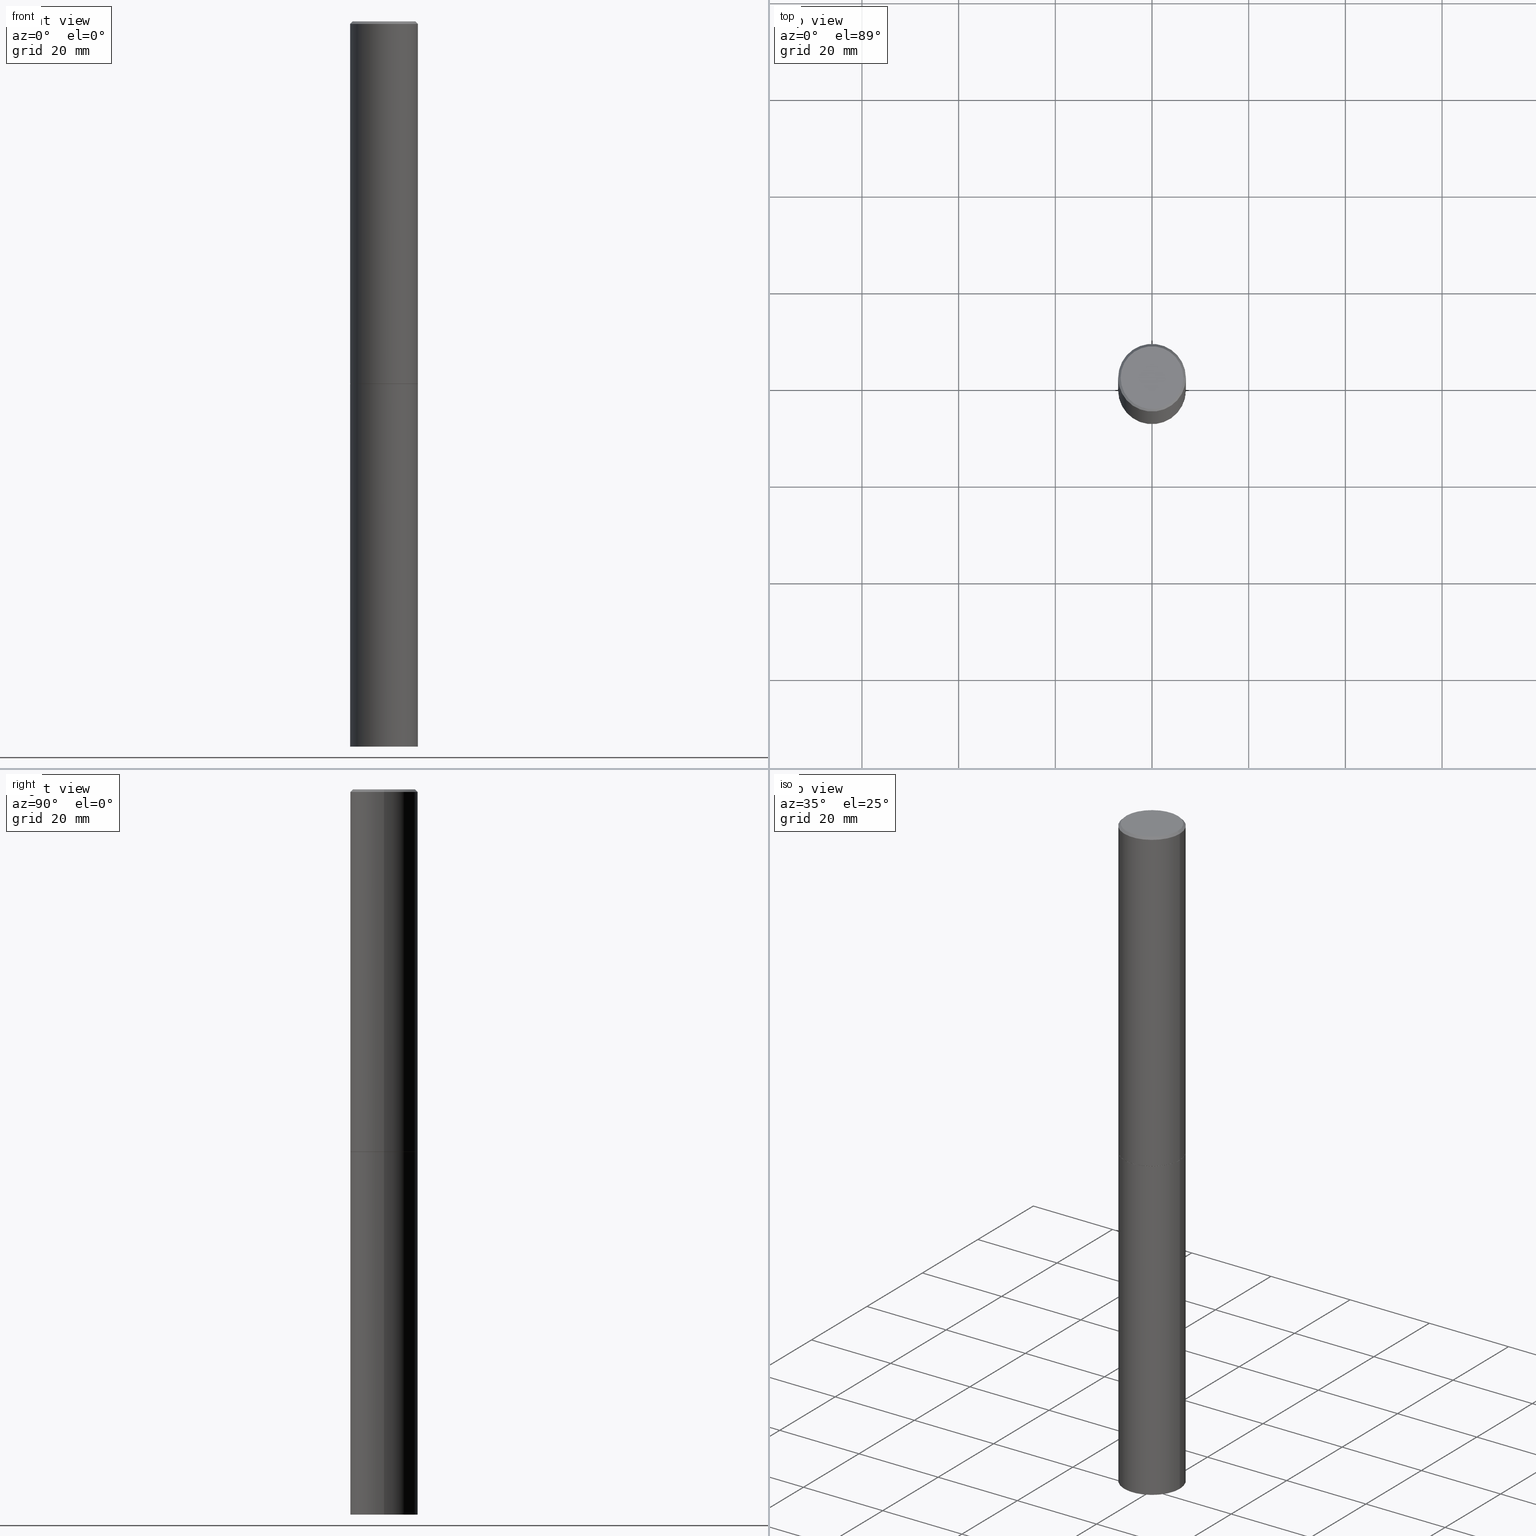
[diagram: canonical four-view strip — front | top / right | iso, engineering-drawing reading convention]
A machine part, canonical four-view strip (front | top / right | iso — engineering-drawing reading convention). The complete STEP part file that produces these views, byte-faithful:
ISO-10303-21;
HEADER;
FILE_DESCRIPTION (( 'STEP AP203' ),
    '1' );
FILE_NAME ('49422.STEP',
    '2024-02-28T20:10:54',
    ( '' ),
    ( '' ),
    'SwSTEP 2.0',
    'SolidWorks 2023',
    '' );
FILE_SCHEMA (( 'CONFIG_CONTROL_DESIGN' ));
ENDSEC;

DATA;
#1 = DIRECTION ( 'NONE',  ( -2.438088387897960049E-29, 3.491481338843145188E-15, 1.000000000000000000 ) ) ;
#2 = DIRECTION ( 'NONE',  ( -2.445468806185136597E-29, 3.491481338843145583E-15, 1.000000000000000000 ) ) ;
#3 = COORDINATED_UNIVERSAL_TIME_OFFSET ( 5, 0, .BEHIND. ) ;
#4 = AXIS2_PLACEMENT_3D ( 'NONE', #225, #149, #260 ) ;
#5 = VECTOR ( 'NONE', #135, 39.37007874015748143 ) ;
#6 = PERSON_AND_ORGANIZATION ( #279, #100 ) ;
#7 = CARTESIAN_POINT ( 'NONE',  ( 0.2555999999999996608, -1.857063081596548059E-15, 4.268512490113146298E-18 ) ) ;
#8 = APPLICATION_PROTOCOL_DEFINITION ( 'international standard', 'config_control_design', 1994, #10 ) ;
#9 = FACE_OUTER_BOUND ( 'NONE', #166, .T. ) ;
#10 = APPLICATION_CONTEXT ( 'configuration controlled 3d designs of mechanical parts and assemblies' ) ;
#11 = CARTESIAN_POINT ( 'NONE',  ( 0.2756000000000000116, -1.924504513970335348E-15, 1.343874319409359987E-29 ) ) ;
#12 = ADVANCED_FACE ( 'NONE', ( #226 ), #332, .T. ) ;
#13 = EDGE_LOOP ( 'NONE', ( #82, #362, #22, #17 ) ) ;
#14 = DIRECTION ( 'NONE',  ( 2.445468806185136597E-29, -3.491481338843145583E-15, -1.000000000000000000 ) ) ;
#15 = DIRECTION ( 'NONE',  ( 1.000000000000000000, -6.982962677686264344E-15, 0.000000000000000000 ) ) ;
#16 = ORIENTED_EDGE ( 'NONE', *, *, #363, .T. ) ;
#17 = ORIENTED_EDGE ( 'NONE', *, *, #245, .T. ) ;
#18 = DIRECTION ( 'NONE',  ( 1.000000000000000000, -6.982962677686267499E-15, 4.876176775795935793E-29 ) ) ;
#19 = APPROVAL_STATUS ( 'not_yet_approved' ) ;
#20 = CARTESIAN_POINT ( 'NONE',  ( 0.000000000000000000, 0.000000000000000000, 0.000000000000000000 ) ) ;
#21 = ORIENTED_EDGE ( 'NONE', *, *, #40, .T. ) ;
#22 = ORIENTED_EDGE ( 'NONE', *, *, #69, .T. ) ;
#23 = DIRECTION ( 'NONE',  ( -2.445468806185136597E-29, 3.491481338843145583E-15, 1.000000000000000000 ) ) ;
#24 = DIRECTION ( 'NONE',  ( -2.445468806185136597E-29, 3.491481338843145583E-15, 1.000000000000000000 ) ) ;
#25 = AXIS2_PLACEMENT_3D ( 'NONE', #323, #277, #268 ) ;
#26 = APPROVAL_PERSON_ORGANIZATION ( #273, #145, #155 ) ;
#27 = VERTEX_POINT ( 'NONE', #56 ) ;
#28 = ADVANCED_FACE ( 'NONE', ( #200 ), #312, .F. ) ;
#29 = CIRCLE ( 'NONE', #70, 0.2756000000000000116 ) ;
#30 = COORDINATED_UNIVERSAL_TIME_OFFSET ( 5, 0, .BEHIND. ) ;
#31 = APPROVAL_STATUS ( 'not_yet_approved' ) ;
#32 = EDGE_LOOP ( 'NONE', ( #121, #117, #38, #189 ) ) ;
#33 = PERSON_AND_ORGANIZATION ( #279, #100 ) ;
#34 = CARTESIAN_POINT ( 'NONE',  ( 7.220735744022853640E-29, -1.030929694920215659E-14, -2.952700000000000546 ) ) ;
#35 = CIRCLE ( 'NONE', #251, 0.2746000000000000107 ) ;
#36 = PERSON_AND_ORGANIZATION ( #279, #100 ) ;
#37 = CARTESIAN_POINT ( 'NONE',  ( 4.890937612370288923E-31, -6.982962677686312563E-17, -0.02000000000000006287 ) ) ;
#38 = ORIENTED_EDGE ( 'NONE', *, *, #344, .T. ) ;
#39 = DIRECTION ( 'NONE',  ( -0.7071067811865473507, 2.468850131082255088E-15, -0.7071067811865476838 ) ) ;
#40 = EDGE_CURVE ( 'NONE', #165, #170, #29, .T. ) ;
#41 = CARTESIAN_POINT ( 'NONE',  ( 7.218290275216666916E-29, -1.030580546786331359E-14, -2.951700000000000212 ) ) ;
#42 = ORIENTED_EDGE ( 'NONE', *, *, #310, .T. ) ;
#43 = AXIS2_PLACEMENT_3D ( 'NONE', #41, #164, #15 ) ;
#44 = ORIENTED_EDGE ( 'NONE', *, *, #202, .F. ) ;
#45 = CC_DESIGN_DATE_AND_TIME_ASSIGNMENT ( #319, #267, ( #318 ) ) ;
#46 = COORDINATED_UNIVERSAL_TIME_OFFSET ( 5, 0, .BEHIND. ) ;
#47 = CARTESIAN_POINT ( 'NONE',  ( 4.890937612370288923E-31, -6.982962677686312563E-17, -0.02000000000000006287 ) ) ;
#48 = DIRECTION ( 'NONE',  ( -2.445468806185136597E-29, 3.491481338843145583E-15, 1.000000000000000000 ) ) ;
#49 = EDGE_LOOP ( 'NONE', ( #278, #16, #252, #316 ) ) ;
#50 = DIRECTION ( 'NONE',  ( 1.000000000000000000, -6.982962677686264344E-15, 0.000000000000000000 ) ) ;
#51 = EDGE_CURVE ( 'NONE', #139, #112, #35, .T. ) ;
#52 = CARTESIAN_POINT ( 'NONE',  ( 1.784845260416607174E-15, 0.2555999999999996608, -8.902883739632567265E-16 ) ) ;
#53 = CARTESIAN_POINT ( 'NONE',  ( 0.000000000000000000, 0.000000000000000000, 0.000000000000000000 ) ) ;
#54 = AXIS2_PLACEMENT_3D ( 'NONE', #124, #229, #88 ) ;
#55 = CIRCLE ( 'NONE', #43, 0.2756000000000000671 ) ;
#56 = CARTESIAN_POINT ( 'NONE',  ( -0.2555999999999996608, 1.819760073805038823E-15, 4.268512490087807223E-18 ) ) ;
#57 = EDGE_CURVE ( 'NONE', #74, #192, #185, .T. ) ;
#58 = CARTESIAN_POINT ( 'NONE',  ( 0.2746000000000000107, -1.222681850049480396E-14, -2.952700000000000546 ) ) ;
#59 = LINE ( 'NONE', #292, #125 ) ;
#60 = AXIS2_PLACEMENT_3D ( 'NONE', #84, #355, #151 ) ;
#61 = LOCAL_TIME ( 15, 10, 54.00000000000000000, #283 ) ;
#62 = CARTESIAN_POINT ( 'NONE',  ( 0.000000000000000000, 0.000000000000000000, 0.000000000000000000 ) ) ;
#63 = ADVANCED_FACE ( 'NONE', ( #132 ), #99, .T. ) ;
#64 = DIRECTION ( 'NONE',  ( -2.445468806185136877E-29, 3.491481338843145188E-15, 1.000000000000000000 ) ) ;
#65 = PRODUCT ( '49422', '49422', '', ( #345 ) ) ;
#66 = COORDINATED_UNIVERSAL_TIME_OFFSET ( 5, 0, .BEHIND. ) ;
#67 = CONICAL_SURFACE ( 'NONE', #25, 0.2746000000000000107, 0.7853981633973288190 ) ;
#68 = CC_DESIGN_SECURITY_CLASSIFICATION ( #235, ( #340 ) ) ;
#69 = EDGE_CURVE ( 'NONE', #27, #137, #163, .T. ) ;
#70 = AXIS2_PLACEMENT_3D ( 'NONE', #333, #86, #177 ) ;
#71 = ORIENTED_EDGE ( 'NONE', *, *, #291, .F. ) ;
#72 = AXIS2_PLACEMENT_3D ( 'NONE', #53, #176, #18 ) ;
#73 = DIRECTION ( 'NONE',  ( -1.000000000000000000, 6.982962677686265922E-15, -4.876176775795935793E-29 ) ) ;
#74 = VERTEX_POINT ( 'NONE', #240 ) ;
#75 = CARTESIAN_POINT ( 'NONE',  ( 4.890937612370288923E-31, -6.982962677686312563E-17, -0.02000000000000006287 ) ) ;
#76 = DIRECTION ( 'NONE',  ( 1.000000000000000000, 0.000000000000000000, 0.000000000000000000 ) ) ;
#77 = CC_DESIGN_PERSON_AND_ORGANIZATION_ASSIGNMENT ( #33, #157, ( #340 ) ) ;
#78 = CARTESIAN_POINT ( 'NONE',  ( -0.2756000000000000116, -1.350586421811533611E-14, -2.952700000000000102 ) ) ;
#79 = CALENDAR_DATE ( 2024, 28, 2 ) ;
#80 = CIRCLE ( 'NONE', #293, 0.2755999999999997341 ) ;
#81 = EDGE_CURVE ( 'NONE', #74, #170, #212, .T. ) ;
#82 = ORIENTED_EDGE ( 'NONE', *, *, #123, .F. ) ;
#83 = CC_DESIGN_DATE_AND_TIME_ASSIGNMENT ( #353, #217, ( #235 ) ) ;
#84 = CARTESIAN_POINT ( 'NONE',  ( 0.000000000000000000, 0.000000000000000000, 0.000000000000000000 ) ) ;
#85 = CARTESIAN_POINT ( 'NONE',  ( 7.218290275216666916E-29, -1.030580546786331359E-14, -2.951700000000000212 ) ) ;
#86 = DIRECTION ( 'NONE',  ( -2.445468806185136597E-29, 3.491481338843145583E-15, 1.000000000000000000 ) ) ;
#87 = CIRCLE ( 'NONE', #142, 0.2555999999999996608 ) ;
#88 = DIRECTION ( 'NONE',  ( 1.000000000000000000, -6.982962677686265922E-15, 0.000000000000000000 ) ) ;
#89 = FACE_OUTER_BOUND ( 'NONE', #289, .T. ) ;
#90 = ADVANCED_BREP_SHAPE_REPRESENTATION ( '49422', ( #224, #218, #231 ), #196 ) ;
#91 = FACE_OUTER_BOUND ( 'NONE', #32, .T. ) ;
#92 = DIRECTION ( 'NONE',  ( 1.000000000000000000, -6.982962677686267499E-15, 4.876176775795935793E-29 ) ) ;
#93 = APPROVAL_PERSON_ORGANIZATION ( #171, #354, #169 ) ;
#94 = CC_DESIGN_APPROVAL ( #354, ( #235 ) ) ;
#95 = ADVANCED_FACE ( 'NONE', ( #213 ), #269, .T. ) ;
#96 = APPROVAL_DATE_TIME ( #342, #145 ) ;
#97 = DIRECTION ( 'NONE',  ( -2.445468806185136597E-29, 3.491481338843145583E-15, 1.000000000000000000 ) ) ;
#98 = DIRECTION ( 'NONE',  ( -0.7071067811864629737, 7.493145998870048082E-15, 0.7071067811866319497 ) ) ;
#99 = CONICAL_SURFACE ( 'NONE', #107, 0.2746000000000000107, 0.7853981633973288190 ) ;
#100 = ORGANIZATION ( 'UNSPECIFIED', 'UNSPECIFIED', '' ) ;
#101 = ORIENTED_EDGE ( 'NONE', *, *, #291, .T. ) ;
#102 = PERSON_AND_ORGANIZATION ( #279, #100 ) ;
#103 = DIRECTION ( 'NONE',  ( -1.000000000000000000, 6.982962677686265922E-15, 0.000000000000000000 ) ) ;
#104 = UNCERTAINTY_MEASURE_WITH_UNIT (LENGTH_MEASURE( 1.000000000000000082E-05 ), #247, 'distance_accuracy_value', 'NONE');
#105 = EDGE_LOOP ( 'NONE', ( #152, #299 ) ) ;
#106 = PERSON_AND_ORGANIZATION_ROLE ( 'classification_officer' ) ;
#107 = AXIS2_PLACEMENT_3D ( 'NONE', #34, #159, #297 ) ;
#108 = EDGE_LOOP ( 'NONE', ( #44, #195 ) ) ;
#109 = AXIS2_PLACEMENT_3D ( 'NONE', #238, #162, #343 ) ;
#110 = CARTESIAN_POINT ( 'NONE',  ( -0.2756000000000000671, -3.229561767565248303E-15, -2.951700000000000212 ) ) ;
#111 = DIRECTION ( 'NONE',  ( 0.000000000000000000, 0.000000000000000000, 1.000000000000000000 ) ) ;
#112 = VERTEX_POINT ( 'NONE', #296 ) ;
#113 = DIMENSIONAL_EXPONENTS ( 1.000000000000000000, 0.000000000000000000, 0.000000000000000000, 0.000000000000000000, 0.000000000000000000, 0.000000000000000000, 0.000000000000000000 ) ;
#114 =( LENGTH_UNIT ( ) NAMED_UNIT ( * ) SI_UNIT ( $, .METRE. ) );
#115 = ADVANCED_FACE ( 'NONE', ( #9 ), #67, .T. ) ;
#116 = APPROVAL_DATE_TIME ( #356, #354 ) ;
#117 = ORIENTED_EDGE ( 'NONE', *, *, #57, .T. ) ;
#118 = EDGE_CURVE ( 'NONE', #27, #156, #87, .T. ) ;
#119 = PLANE ( 'NONE',  #4 ) ;
#120 = CARTESIAN_POINT ( 'NONE',  ( -0.2755999999999997341, 1.854674887193470078E-15, -0.02000000000000006287 ) ) ;
#121 = ORIENTED_EDGE ( 'NONE', *, *, #81, .F. ) ;
#122 = ORIENTED_EDGE ( 'NONE', *, *, #123, .T. ) ;
#123 = EDGE_CURVE ( 'NONE', #156, #197, #59, .T. ) ;
#124 = CARTESIAN_POINT ( 'NONE',  ( 1.444171603492632270E-28, -2.061894304653819197E-14, -5.905499999999999972 ) ) ;
#125 = VECTOR ( 'NONE', #222, 39.37007874015748143 ) ;
#126 = LOCAL_TIME ( 15, 10, 54.00000000000000000, #46 ) ;
#127 = DATE_AND_TIME ( #295, #350 ) ;
#128 = CARTESIAN_POINT ( 'NONE',  ( 1.924504513970407529E-15, 0.2755999999999896866, -2.952700000000000990 ) ) ;
#129 = CIRCLE ( 'NONE', #148, 0.2756000000000000116 ) ;
#130 = CALENDAR_DATE ( 2024, 28, 2 ) ;
#131 = CC_DESIGN_APPROVAL ( #239, ( #318 ) ) ;
#132 = FACE_OUTER_BOUND ( 'NONE', #49, .T. ) ;
#133 = CC_DESIGN_PERSON_AND_ORGANIZATION_ASSIGNMENT ( #36, #274, ( #65 ) ) ;
#134 = AXIS2_PLACEMENT_3D ( 'NONE', #254, #24, #146 ) ;
#135 = DIRECTION ( 'NONE',  ( -2.445468806185136877E-29, 3.491481338843145188E-15, 1.000000000000000000 ) ) ;
#136 = EDGE_LOOP ( 'NONE', ( #21, #286 ) ) ;
#137 = VERTEX_POINT ( 'NONE', #120 ) ;
#138 = EDGE_CURVE ( 'NONE', #156, #27, #280, .T. ) ;
#139 = VERTEX_POINT ( 'NONE', #58 ) ;
#140 = ADVANCED_FACE ( 'NONE', ( #89 ), #366, .F. ) ;
#141 =( NAMED_UNIT ( * ) SI_UNIT ( $, .STERADIAN. ) SOLID_ANGLE_UNIT ( ) );
#142 = AXIS2_PLACEMENT_3D ( 'NONE', #237, #97, #272 ) ;
#143 = ADVANCED_FACE ( 'NONE', ( #91 ), #337, .T. ) ;
#144 = DIRECTION ( 'NONE',  ( 1.000000000000000000, -6.982962677686265922E-15, 0.000000000000000000 ) ) ;
#145 = APPROVAL ( #31, 'UNSPECIFIED' ) ;
#146 = DIRECTION ( 'NONE',  ( 1.000000000000000000, -6.982962677686267499E-15, 4.876176775795935793E-29 ) ) ;
#147 = ORIENTED_EDGE ( 'NONE', *, *, #69, .F. ) ;
#148 = AXIS2_PLACEMENT_3D ( 'NONE', #193, #352, #309 ) ;
#149 = DIRECTION ( 'NONE',  ( 2.438088387897960049E-29, -3.491481338843145188E-15, -1.000000000000000000 ) ) ;
#150 = APPLICATION_CONTEXT ( 'configuration controlled 3d designs of mechanical parts and assemblies' ) ;
#151 = DIRECTION ( 'NONE',  ( 1.000000000000000000, -6.982962677686267499E-15, 4.876176775795935793E-29 ) ) ;
#152 = ORIENTED_EDGE ( 'NONE', *, *, #118, .T. ) ;
#153 = AXIS2_PLACEMENT_3D ( 'NONE', #62, #2, #92 ) ;
#154 = ADVANCED_FACE ( 'NONE', ( #181 ), #294, .F. ) ;
#155 = APPROVAL_ROLE ( '' ) ;
#156 = VERTEX_POINT ( 'NONE', #7 ) ;
#157 = PERSON_AND_ORGANIZATION_ROLE ( 'creator' ) ;
#158 = AXIS2_PLACEMENT_3D ( 'NONE', #234, #241, #339 ) ;
#159 = DIRECTION ( 'NONE',  ( -2.445468806185136597E-29, 3.491481338843145583E-15, 1.000000000000000000 ) ) ;
#160 = CC_DESIGN_PERSON_AND_ORGANIZATION_ASSIGNMENT ( #186, #106, ( #235 ) ) ;
#161 = LINE ( 'NONE', #11, #5 ) ;
#162 = DIRECTION ( 'NONE',  ( 2.445468806185136597E-29, -3.491481338843145583E-15, -1.000000000000000000 ) ) ;
#163 = LINE ( 'NONE', #300, #306 ) ;
#164 = DIRECTION ( 'NONE',  ( -2.445468806185136597E-29, 3.491481338843145583E-15, 1.000000000000000000 ) ) ;
#165 = VERTEX_POINT ( 'NONE', #172 ) ;
#166 = EDGE_LOOP ( 'NONE', ( #246, #308, #190, #173 ) ) ;
#167 = APPLICATION_PROTOCOL_DEFINITION ( 'international standard', 'config_control_design', 1994, #150 ) ;
#168 = EDGE_LOOP ( 'NONE', ( #71, #351, #42, #282 ) ) ;
#169 = APPROVAL_ROLE ( '' ) ;
#170 = VERTEX_POINT ( 'NONE', #78 ) ;
#171 = PERSON_AND_ORGANIZATION ( #279, #100 ) ;
#172 = CARTESIAN_POINT ( 'NONE',  ( 0.2756000000000000116, -1.223380146317248997E-14, -2.952700000000000102 ) ) ;
#173 = ORIENTED_EDGE ( 'NONE', *, *, #315, .F. ) ;
#174 = FACE_OUTER_BOUND ( 'NONE', #329, .T. ) ;
#175 = DIRECTION ( 'NONE',  ( 2.438088387897960049E-29, -3.491481338843145188E-15, -1.000000000000000000 ) ) ;
#176 = DIRECTION ( 'NONE',  ( -2.445468806185136597E-29, 3.491481338843145583E-15, 1.000000000000000000 ) ) ;
#177 = DIRECTION ( 'NONE',  ( 1.000000000000000000, -6.982962677686265922E-15, 0.000000000000000000 ) ) ;
#178 = AXIS2_PLACEMENT_3D ( 'NONE', #128, #341, #73 ) ;
#179 = VECTOR ( 'NONE', #335, 39.37007874015748854 ) ;
#180 = PRODUCT_RELATED_PRODUCT_CATEGORY ( 'detail', '', ( #65 ) ) ;
#181 = FACE_OUTER_BOUND ( 'NONE', #136, .T. ) ;
#182 = APPROVAL_DATE_TIME ( #127, #239 ) ;
#183 = CARTESIAN_POINT ( 'NONE',  ( -0.2746000000000000107, -8.358146596804921801E-15, -2.952700000000000546 ) ) ;
#184 = PERSON_AND_ORGANIZATION ( #279, #100 ) ;
#185 = CIRCLE ( 'NONE', #54, 0.2756000000000000116 ) ;
#186 = PERSON_AND_ORGANIZATION ( #279, #100 ) ;
#187 = DIRECTION ( 'NONE',  ( -2.445468806185136877E-29, 3.491481338843145188E-15, 1.000000000000000000 ) ) ;
#188 = VECTOR ( 'NONE', #191, 39.37007874015748143 ) ;
#189 = ORIENTED_EDGE ( 'NONE', *, *, #199, .F. ) ;
#190 = ORIENTED_EDGE ( 'NONE', *, *, #228, .F. ) ;
#191 = DIRECTION ( 'NONE',  ( -2.445468806185136877E-29, 3.491481338843145188E-15, 1.000000000000000000 ) ) ;
#192 = VERTEX_POINT ( 'NONE', #221 ) ;
#193 = CARTESIAN_POINT ( 'NONE',  ( 7.220735744022852519E-29, -1.030929694920215502E-14, -2.952700000000000102 ) ) ;
#194 = AXIS2_PLACEMENT_3D ( 'NONE', #85, #23, #50 ) ;
#195 = ORIENTED_EDGE ( 'NONE', *, *, #57, .F. ) ;
#196 =( GEOMETRIC_REPRESENTATION_CONTEXT ( 3 ) GLOBAL_UNCERTAINTY_ASSIGNED_CONTEXT ( ( #104 ) ) GLOBAL_UNIT_ASSIGNED_CONTEXT ( ( #247, #284, #141 ) ) REPRESENTATION_CONTEXT ( 'NONE', 'WORKASPACE' ) );
#197 = VERTEX_POINT ( 'NONE', #250 ) ;
#198 = DIRECTION ( 'NONE',  ( 1.000000000000000000, -6.982962677686265922E-15, 0.000000000000000000 ) ) ;
#199 = EDGE_CURVE ( 'NONE', #170, #165, #129, .T. ) ;
#200 = FACE_OUTER_BOUND ( 'NONE', #105, .T. ) ;
#201 = FACE_OUTER_BOUND ( 'NONE', #168, .T. ) ;
#202 = EDGE_CURVE ( 'NONE', #192, #74, #346, .T. ) ;
#203 = CARTESIAN_POINT ( 'NONE',  ( 7.220735744022853640E-29, -1.030929694920215659E-14, -2.952700000000000546 ) ) ;
#204 = CLOSED_SHELL ( 'NONE', ( #115, #259, #95, #336, #303, #63, #140, #28 ) ) ;
#205 = CC_DESIGN_APPROVAL ( #145, ( #340 ) ) ;
#206 = CC_DESIGN_PERSON_AND_ORGANIZATION_ASSIGNMENT ( #184, #244, ( #318 ) ) ;
#207 = AXIS2_PLACEMENT_3D ( 'NONE', #232, #1, #233 ) ;
#208 = CIRCLE ( 'NONE', #194, 0.2756000000000000671 ) ;
#209 = CALENDAR_DATE ( 2024, 28, 2 ) ;
#210 = DESIGN_CONTEXT ( 'detailed design', #10, 'design' ) ;
#211 = PERSON_AND_ORGANIZATION_ROLE ( 'design_supplier' ) ;
#212 = LINE ( 'NONE', #322, #243 ) ;
#213 = FACE_OUTER_BOUND ( 'NONE', #311, .T. ) ;
#214 = CARTESIAN_POINT ( 'NONE',  ( 0.2756000000000000671, -1.223030998183364854E-14, -2.951700000000000212 ) ) ;
#215 = PRODUCT_DEFINITION_SHAPE ( 'NONE', 'NONE',  #318 ) ;
#216 = EDGE_LOOP ( 'NONE', ( #330, #327, #347, #249 ) ) ;
#217 = DATE_TIME_ROLE ( 'classification_date' ) ;
#218 = MANIFOLD_SOLID_BREP ( 'Body-Move/Copy2[2]', #204 ) ;
#219 = LINE ( 'NONE', #305, #314 ) ;
#220 = DIRECTION ( 'NONE',  ( -2.445468806185136597E-29, 3.491481338843145583E-15, 1.000000000000000000 ) ) ;
#221 = CARTESIAN_POINT ( 'NONE',  ( 0.2756000000000000116, -2.254344756050852692E-14, -5.905499999999999972 ) ) ;
#222 = DIRECTION ( 'NONE',  ( 0.7071067811865473507, -7.319954787623256045E-15, -0.7071067811865476838 ) ) ;
#223 = CARTESIAN_POINT ( 'NONE',  ( 0.2746000000000000107, -1.222681850049480396E-14, -2.952700000000000546 ) ) ;
#224 = MANIFOLD_SOLID_BREP ( 'Body-Move/Copy2[1]', #264 ) ;
#225 = CARTESIAN_POINT ( 'NONE',  ( 1.924504513970479316E-15, 0.2755999999999794170, -5.905500000000000860 ) ) ;
#226 = FACE_OUTER_BOUND ( 'NONE', #216, .T. ) ;
#227 = LINE ( 'NONE', #357, #188 ) ;
#228 = EDGE_CURVE ( 'NONE', #360, #304, #208, .T. ) ;
#229 = DIRECTION ( 'NONE',  ( -2.445468806185136597E-29, 3.491481338843145583E-15, 1.000000000000000000 ) ) ;
#230 = AXIS2_PLACEMENT_3D ( 'NONE', #52, #175, #261 ) ;
#231 = AXIS2_PLACEMENT_3D ( 'NONE', #20, #111, #76 ) ;
#232 = CARTESIAN_POINT ( 'NONE',  ( 7.220735744022853640E-29, -1.030929694920215659E-14, -2.952700000000000546 ) ) ;
#233 = DIRECTION ( 'NONE',  ( 1.000000000000000000, -6.982962677686265922E-15, 4.876176775795935793E-29 ) ) ;
#234 = CARTESIAN_POINT ( 'NONE',  ( 7.220735744022853640E-29, -1.030929694920215659E-14, -2.952700000000000546 ) ) ;
#235 = SECURITY_CLASSIFICATION ( '', '', #321 ) ;
#236 = APPROVAL_STATUS ( 'not_yet_approved' ) ;
#237 = CARTESIAN_POINT ( 'NONE',  ( -1.043851414335219820E-46, 1.490343170380447200E-32, 4.268512490100411279E-18 ) ) ;
#238 = CARTESIAN_POINT ( 'NONE',  ( 4.890937612370288923E-31, -6.982962677686312563E-17, -0.02000000000000006287 ) ) ;
#239 = APPROVAL ( #236, 'UNSPECIFIED' ) ;
#240 = CARTESIAN_POINT ( 'NONE',  ( -0.2756000000000000116, -1.350586421811533611E-14, -5.905499999999999972 ) ) ;
#241 = DIRECTION ( 'NONE',  ( -2.445468806185136597E-29, 3.491481338843145583E-15, 1.000000000000000000 ) ) ;
#242 = LINE ( 'NONE', #223, #179 ) ;
#243 = VECTOR ( 'NONE', #187, 39.37007874015748143 ) ;
#244 = PERSON_AND_ORGANIZATION_ROLE ( 'creator' ) ;
#245 = EDGE_CURVE ( 'NONE', #137, #197, #80, .T. ) ;
#246 = ORIENTED_EDGE ( 'NONE', *, *, #51, .T. ) ;
#247 =( CONVERSION_BASED_UNIT ( 'INCH', #307 ) LENGTH_UNIT ( ) NAMED_UNIT ( #113 ) );
#248 = ORIENTED_EDGE ( 'NONE', *, *, #310, .F. ) ;
#249 = ORIENTED_EDGE ( 'NONE', *, *, #344, .F. ) ;
#250 = CARTESIAN_POINT ( 'NONE',  ( 0.2755999999999997341, -1.960582874962695433E-15, -0.02000000000000006287 ) ) ;
#251 = AXIS2_PLACEMENT_3D ( 'NONE', #203, #290, #364 ) ;
#252 = ORIENTED_EDGE ( 'NONE', *, *, #315, .T. ) ;
#253 = ORIENTED_EDGE ( 'NONE', *, *, #228, .T. ) ;
#254 = CARTESIAN_POINT ( 'NONE',  ( 0.000000000000000000, 0.000000000000000000, 0.000000000000000000 ) ) ;
#255 = CALENDAR_DATE ( 2024, 28, 2 ) ;
#256 = DIRECTION ( 'NONE',  ( -2.445468806185136597E-29, 3.491481338843145583E-15, 1.000000000000000000 ) ) ;
#257 = CIRCLE ( 'NONE', #338, 0.2755999999999997341 ) ;
#258 = VECTOR ( 'NONE', #98, 39.37007874015748854 ) ;
#259 = ADVANCED_FACE ( 'NONE', ( #174 ), #285, .T. ) ;
#260 = DIRECTION ( 'NONE',  ( -1.000000000000000000, 6.982962677686265922E-15, -4.876176775795935793E-29 ) ) ;
#261 = DIRECTION ( 'NONE',  ( -1.000000000000000000, 6.982962677686265922E-15, -4.876176775795935793E-29 ) ) ;
#262 = EDGE_CURVE ( 'NONE', #197, #137, #257, .T. ) ;
#263 = ORIENTED_EDGE ( 'NONE', *, *, #262, .T. ) ;
#264 = CLOSED_SHELL ( 'NONE', ( #12, #301, #154, #143 ) ) ;
#265 = DIRECTION ( 'NONE',  ( 1.000000000000000000, -6.982962677686267499E-15, 4.876201967404968863E-29 ) ) ;
#266 = APPROVAL_ROLE ( '' ) ;
#267 = DATE_TIME_ROLE ( 'creation_date' ) ;
#268 = DIRECTION ( 'NONE',  ( 1.000000000000000000, -6.982962677686262766E-15, 0.000000000000000000 ) ) ;
#269 = CONICAL_SURFACE ( 'NONE', #325, 0.2755999999999997341, 0.7853981633974480570 ) ;
#270 = CC_DESIGN_PERSON_AND_ORGANIZATION_ASSIGNMENT ( #6, #211, ( #340 ) ) ;
#271 = CIRCLE ( 'NONE', #158, 0.2746000000000000107 ) ;
#272 = DIRECTION ( 'NONE',  ( 1.000000000000000000, -6.982962677686267499E-15, 4.876201967404968863E-29 ) ) ;
#273 = PERSON_AND_ORGANIZATION ( #279, #100 ) ;
#274 = PERSON_AND_ORGANIZATION_ROLE ( 'design_owner' ) ;
#275 = AXIS2_PLACEMENT_3D ( 'NONE', #334, #48, #265 ) ;
#276 = SHAPE_DEFINITION_REPRESENTATION ( #215, #90 ) ;
#277 = DIRECTION ( 'NONE',  ( -2.445468806185136597E-29, 3.491481338843145583E-15, 1.000000000000000000 ) ) ;
#278 = ORIENTED_EDGE ( 'NONE', *, *, #365, .F. ) ;
#279 = PERSON ( 'UNSPECIFIED', 'UNSPECIFIED', 'UNSPECIFIED', ('UNSPECIFIED'), ('UNSPECIFIED'), ('UNSPECIFIED') ) ;
#280 = CIRCLE ( 'NONE', #275, 0.2555999999999996608 ) ;
#281 = LOCAL_TIME ( 15, 10, 54.00000000000000000, #30 ) ;
#282 = ORIENTED_EDGE ( 'NONE', *, *, #245, .F. ) ;
#283 = COORDINATED_UNIVERSAL_TIME_OFFSET ( 5, 0, .BEHIND. ) ;
#284 =( NAMED_UNIT ( * ) PLANE_ANGLE_UNIT ( ) SI_UNIT ( $, .RADIAN. ) );
#285 = CYLINDRICAL_SURFACE ( 'NONE', #134, 0.2755999999999999006 ) ;
#286 = ORIENTED_EDGE ( 'NONE', *, *, #199, .T. ) ;
#287 = FACE_OUTER_BOUND ( 'NONE', #108, .T. ) ;
#288 = CONICAL_SURFACE ( 'NONE', #109, 0.2755999999999997341, 0.7853981633974480570 ) ;
#289 = EDGE_LOOP ( 'NONE', ( #348, #326 ) ) ;
#290 = DIRECTION ( 'NONE',  ( -2.445468806185136597E-29, 3.491481338843145583E-15, 1.000000000000000000 ) ) ;
#291 = EDGE_CURVE ( 'NONE', #304, #137, #227, .T. ) ;
#292 = CARTESIAN_POINT ( 'NONE',  ( 0.2755999999999997341, -1.960582874962695433E-15, -0.02000000000000006287 ) ) ;
#293 = AXIS2_PLACEMENT_3D ( 'NONE', #75, #220, #198 ) ;
#294 = PLANE ( 'NONE',  #178 ) ;
#295 = CALENDAR_DATE ( 2024, 28, 2 ) ;
#296 = CARTESIAN_POINT ( 'NONE',  ( -0.2746000000000000107, -8.352848142456699399E-15, -2.952700000000000546 ) ) ;
#297 = DIRECTION ( 'NONE',  ( 1.000000000000000000, -6.982962677686262766E-15, 0.000000000000000000 ) ) ;
#298 = FACE_OUTER_BOUND ( 'NONE', #13, .T. ) ;
#299 = ORIENTED_EDGE ( 'NONE', *, *, #138, .T. ) ;
#300 = CARTESIAN_POINT ( 'NONE',  ( -0.2755999999999997341, 1.854674887193470078E-15, -0.02000000000000006287 ) ) ;
#301 = ADVANCED_FACE ( 'NONE', ( #287 ), #119, .T. ) ;
#302 = ORIENTED_EDGE ( 'NONE', *, *, #138, .F. ) ;
#303 = ADVANCED_FACE ( 'NONE', ( #201 ), #313, .T. ) ;
#304 = VERTEX_POINT ( 'NONE', #110 ) ;
#305 = CARTESIAN_POINT ( 'NONE',  ( 0.2755999999999999006, -1.924504513970334560E-15, 1.343874319409359427E-29 ) ) ;
#306 = VECTOR ( 'NONE', #39, 39.37007874015748143 ) ;
#307 = LENGTH_MEASURE_WITH_UNIT ( LENGTH_MEASURE( 0.02539999999999999897 ), #114 );
#308 = ORIENTED_EDGE ( 'NONE', *, *, #365, .T. ) ;
#309 = DIRECTION ( 'NONE',  ( 1.000000000000000000, -6.982962677686265922E-15, 0.000000000000000000 ) ) ;
#310 = EDGE_CURVE ( 'NONE', #360, #197, #219, .T. ) ;
#311 = EDGE_LOOP ( 'NONE', ( #302, #122, #263, #147 ) ) ;
#312 = PLANE ( 'NONE',  #230 ) ;
#313 = CYLINDRICAL_SURFACE ( 'NONE', #72, 0.2755999999999999006 ) ;
#314 = VECTOR ( 'NONE', #64, 39.37007874015748143 ) ;
#315 = EDGE_CURVE ( 'NONE', #139, #360, #242, .T. ) ;
#316 = ORIENTED_EDGE ( 'NONE', *, *, #361, .F. ) ;
#317 = APPROVAL_PERSON_ORGANIZATION ( #102, #239, #266 ) ;
#318 = PRODUCT_DEFINITION ( 'UNKNOWN', '', #340, #210 ) ;
#319 = DATE_AND_TIME ( #209, #281 ) ;
#320 = LINE ( 'NONE', #183, #258 ) ;
#321 = SECURITY_CLASSIFICATION_LEVEL ( 'unclassified' ) ;
#322 = CARTESIAN_POINT ( 'NONE',  ( -0.2756000000000000116, 1.958255779754836195E-15, -1.355658510874252007E-29 ) ) ;
#323 = CARTESIAN_POINT ( 'NONE',  ( 7.220735744022853640E-29, -1.030929694920215659E-14, -2.952700000000000546 ) ) ;
#324 = ORIENTED_EDGE ( 'NONE', *, *, #262, .F. ) ;
#325 = AXIS2_PLACEMENT_3D ( 'NONE', #37, #14, #103 ) ;
#326 = ORIENTED_EDGE ( 'NONE', *, *, #363, .F. ) ;
#327 = ORIENTED_EDGE ( 'NONE', *, *, #81, .T. ) ;
#328 = CARTESIAN_POINT ( 'NONE',  ( 1.444171603492632270E-28, -2.061894304653819197E-14, -5.905499999999999972 ) ) ;
#329 = EDGE_LOOP ( 'NONE', ( #253, #101, #324, #248 ) ) ;
#330 = ORIENTED_EDGE ( 'NONE', *, *, #202, .T. ) ;
#331 = DIRECTION ( 'NONE',  ( 1.000000000000000000, -6.982962677686265922E-15, 0.000000000000000000 ) ) ;
#332 = CYLINDRICAL_SURFACE ( 'NONE', #60, 0.2756000000000000116 ) ;
#333 = CARTESIAN_POINT ( 'NONE',  ( 7.220735744022852519E-29, -1.030929694920215502E-14, -2.952700000000000102 ) ) ;
#334 = CARTESIAN_POINT ( 'NONE',  ( -1.043851414335219820E-46, 1.490343170380447200E-32, 4.268512490100411279E-18 ) ) ;
#335 = DIRECTION ( 'NONE',  ( 0.7071067811864629737, -2.468850131081371564E-15, 0.7071067811866319497 ) ) ;
#336 = ADVANCED_FACE ( 'NONE', ( #298 ), #288, .T. ) ;
#337 = CYLINDRICAL_SURFACE ( 'NONE', #153, 0.2756000000000000116 ) ;
#338 = AXIS2_PLACEMENT_3D ( 'NONE', #47, #256, #331 ) ;
#339 = DIRECTION ( 'NONE',  ( 1.000000000000000000, -6.982962677686262766E-15, 0.000000000000000000 ) ) ;
#340 = PRODUCT_DEFINITION_FORMATION_WITH_SPECIFIED_SOURCE ( 'ANY', '', #65, .NOT_KNOWN. ) ;
#341 = DIRECTION ( 'NONE',  ( 2.438088387897960049E-29, -3.491481338843145188E-15, -1.000000000000000000 ) ) ;
#342 = DATE_AND_TIME ( #130, #359 ) ;
#343 = DIRECTION ( 'NONE',  ( -1.000000000000000000, 6.982962677686265922E-15, 0.000000000000000000 ) ) ;
#344 = EDGE_CURVE ( 'NONE', #192, #165, #161, .T. ) ;
#345 = MECHANICAL_CONTEXT ( 'NONE', #150, 'mechanical' ) ;
#346 = CIRCLE ( 'NONE', #358, 0.2756000000000000116 ) ;
#347 = ORIENTED_EDGE ( 'NONE', *, *, #40, .F. ) ;
#348 = ORIENTED_EDGE ( 'NONE', *, *, #51, .F. ) ;
#349 = DIRECTION ( 'NONE',  ( -2.445468806185136597E-29, 3.491481338843145583E-15, 1.000000000000000000 ) ) ;
#350 = LOCAL_TIME ( 15, 10, 54.00000000000000000, #66 ) ;
#351 = ORIENTED_EDGE ( 'NONE', *, *, #361, .T. ) ;
#352 = DIRECTION ( 'NONE',  ( -2.445468806185136597E-29, 3.491481338843145583E-15, 1.000000000000000000 ) ) ;
#353 = DATE_AND_TIME ( #79, #126 ) ;
#354 = APPROVAL ( #19, 'UNSPECIFIED' ) ;
#355 = DIRECTION ( 'NONE',  ( -2.445468806185136597E-29, 3.491481338843145583E-15, 1.000000000000000000 ) ) ;
#356 = DATE_AND_TIME ( #255, #61 ) ;
#357 = CARTESIAN_POINT ( 'NONE',  ( -0.2755999999999999006, 1.958255779754835406E-15, -1.355658510874251446E-29 ) ) ;
#358 = AXIS2_PLACEMENT_3D ( 'NONE', #328, #349, #144 ) ;
#359 = LOCAL_TIME ( 15, 10, 54.00000000000000000, #3 ) ;
#360 = VERTEX_POINT ( 'NONE', #214 ) ;
#361 = EDGE_CURVE ( 'NONE', #304, #360, #55, .T. ) ;
#362 = ORIENTED_EDGE ( 'NONE', *, *, #118, .F. ) ;
#363 = EDGE_CURVE ( 'NONE', #112, #139, #271, .T. ) ;
#364 = DIRECTION ( 'NONE',  ( 1.000000000000000000, -6.982962677686262766E-15, 0.000000000000000000 ) ) ;
#365 = EDGE_CURVE ( 'NONE', #112, #304, #320, .T. ) ;
#366 = PLANE ( 'NONE',  #207 ) ;
ENDSEC;
END-ISO-10303-21;
